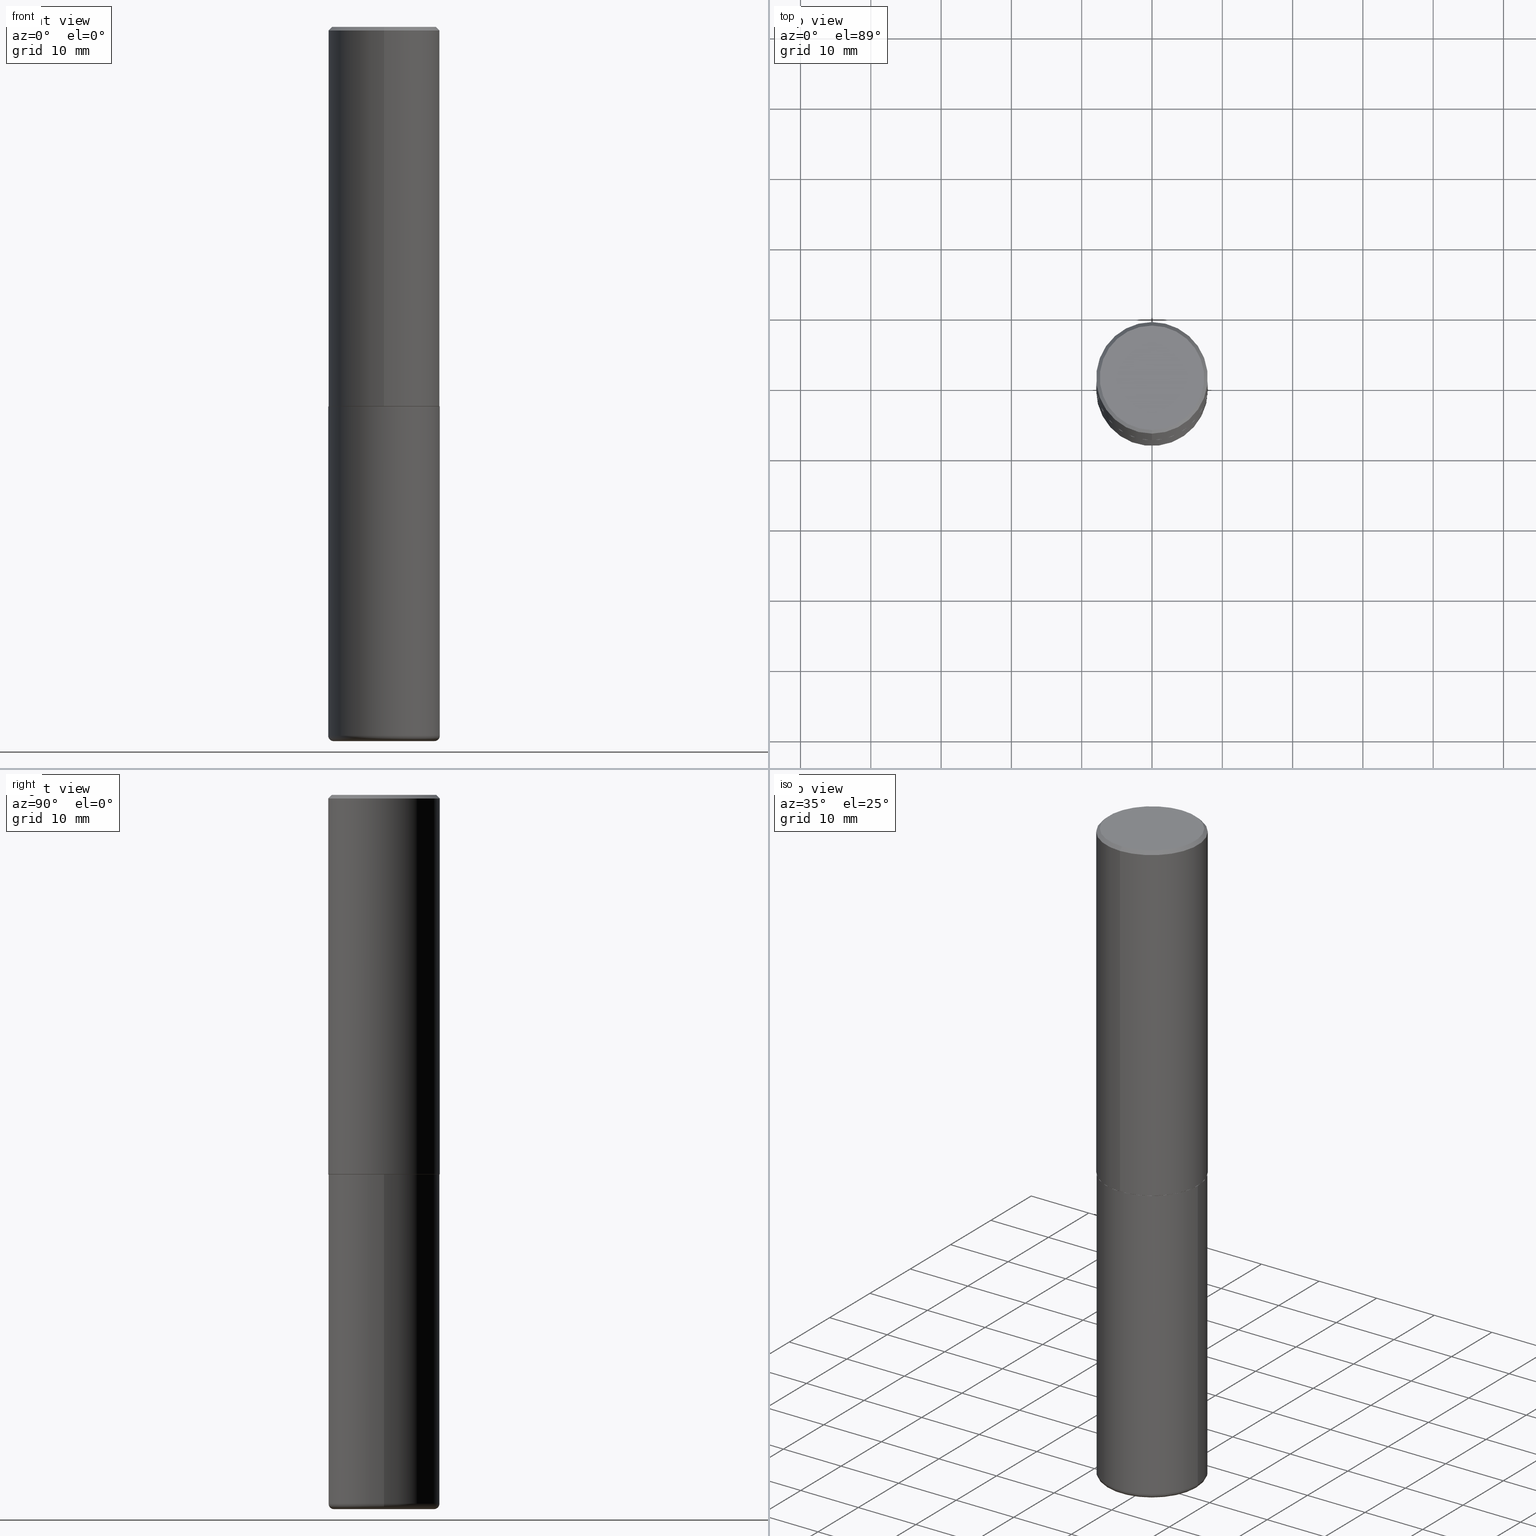
[diagram: canonical four-view strip — front | top / right | iso, engineering-drawing reading convention]
A machine part, canonical four-view strip (front | top / right | iso — engineering-drawing reading convention). The complete STEP part file that produces these views, byte-faithful:
ISO-10303-21;
HEADER;
FILE_DESCRIPTION (( 'STEP AP203' ),
    '1' );
FILE_NAME ('37587.STEP',
    '2024-03-02T05:04:02',
    ( '' ),
    ( '' ),
    'SwSTEP 2.0',
    'SolidWorks 2023',
    '' );
FILE_SCHEMA (( 'CONFIG_CONTROL_DESIGN' ));
ENDSEC;

DATA;
#1 = AXIS2_PLACEMENT_3D ( 'NONE', #8, #132, #392 ) ;
#2 = AXIS2_PLACEMENT_3D ( 'NONE', #366, #73, #293 ) ;
#3 = VECTOR ( 'NONE', #255, 39.37007874015748143 ) ;
#4 = CARTESIAN_POINT ( 'NONE',  ( -2.150299018297948745E-46, 3.071607443834507134E-32, 8.795209847407834549E-18 ) ) ;
#5 = ORIENTED_EDGE ( 'NONE', *, *, #189, .T. ) ;
#6 = EDGE_CURVE ( 'NONE', #127, #31, #110, .T. ) ;
#7 = CARTESIAN_POINT ( 'NONE',  ( 9.781875224740546387E-29, -1.396592535537258233E-14, -4.000000000000000000 ) ) ;
#8 = CARTESIAN_POINT ( 'NONE',  ( 4.889704863452922148E-31, -6.984728044299695791E-17, -0.02000000000000006981 ) ) ;
#9 = AXIS2_PLACEMENT_3D ( 'NONE', #243, #313, #208 ) ;
#10 = LINE ( 'NONE', #105, #311 ) ;
#11 = LOCAL_TIME ( 0, 4, 2.000000000000000000, #177 ) ;
#12 = ORIENTED_EDGE ( 'NONE', *, *, #6, .F. ) ;
#13 = VERTEX_POINT ( 'NONE', #294 ) ;
#14 = EDGE_CURVE ( 'NONE', #135, #233, #323, .T. ) ;
#15 = DIRECTION ( 'NONE',  ( -1.000000000000000000, 6.982962677686265922E-15, -4.876176775795935793E-29 ) ) ;
#16 = EDGE_LOOP ( 'NONE', ( #29, #78, #38, #325 ) ) ;
#17 = EDGE_CURVE ( 'NONE', #227, #123, #162, .T. ) ;
#18 = PERSON_AND_ORGANIZATION ( #160, #353 ) ;
#19 = AXIS2_PLACEMENT_3D ( 'NONE', #115, #109, #69 ) ;
#20 = DIRECTION ( 'NONE',  ( -6.982962677686265922E-15, -1.000000000000000000, 3.507991003100177457E-15 ) ) ;
#21 = APPROVAL_DATE_TIME ( #342, #91 ) ;
#22 = CARTESIAN_POINT ( 'NONE',  ( -0.2825000000000000289, -1.185389768668500455E-14, -3.970000000000000195 ) ) ;
#23 = DATE_TIME_ROLE ( 'creation_date' ) ;
#24 = CC_DESIGN_PERSON_AND_ORGANIZATION_ASSIGNMENT ( #153, #56, ( #104 ) ) ;
#25 = FACE_OUTER_BOUND ( 'NONE', #159, .T. ) ;
#26 = DIRECTION ( 'NONE',  ( -2.445468806185136597E-29, 3.491481338843145583E-15, 1.000000000000000000 ) ) ;
#27 = CALENDAR_DATE ( 2024, 2, 3 ) ;
#28 = DIRECTION ( 'NONE',  ( 1.000000000000000000, -6.982962677686269077E-15, 0.000000000000000000 ) ) ;
#29 = ORIENTED_EDGE ( 'NONE', *, *, #189, .F. ) ;
#30 = CARTESIAN_POINT ( 'NONE',  ( -2.143905624303602824E-15, -0.3125000000000000555, -0.01999999999999897693 ) ) ;
#31 = VERTEX_POINT ( 'NONE', #173 ) ;
#32 = ADVANCED_FACE ( 'NONE', ( #397 ), #298, .T. ) ;
#33 = CONICAL_SURFACE ( 'NONE', #262, 0.3125000000000000000, 0.7853981633974471688 ) ;
#34 = ORIENTED_EDGE ( 'NONE', *, *, #17, .F. ) ;
#35 = AXIS2_PLACEMENT_3D ( 'NONE', #349, #215, #338 ) ;
#36 = TOROIDAL_SURFACE ( 'NONE', #103, 0.2825000000000000289, 0.02999999999999997113 ) ;
#37 = CIRCLE ( 'NONE', #176, 0.3125000000000000000 ) ;
#38 = ORIENTED_EDGE ( 'NONE', *, *, #221, .T. ) ;
#39 = CARTESIAN_POINT ( 'NONE',  ( 5.196621213143414147E-29, -7.419397845041682046E-15, -2.124999999999999556 ) ) ;
#40 = ORIENTED_EDGE ( 'NONE', *, *, #14, .T. ) ;
#41 = DIRECTION ( 'NONE',  ( 1.000000000000000000, -6.982962677686269077E-15, 0.000000000000000000 ) ) ;
#42 = ORIENTED_EDGE ( 'NONE', *, *, #163, .T. ) ;
#43 = VECTOR ( 'NONE', #306, 39.37007874015748143 ) ;
#44 = EDGE_LOOP ( 'NONE', ( #380, #40, #42, #314 ) ) ;
#45 = DIRECTION ( 'NONE',  ( -1.000000000000000000, 6.982962677686265922E-15, -4.876176775795935793E-29 ) ) ;
#46 = CARTESIAN_POINT ( 'NONE',  ( 2.220446049250313475E-15, 0.3125000000000001665, -1.091363756921824478E-15 ) ) ;
#47 = DIRECTION ( 'NONE',  ( 2.438088387897960049E-29, -3.491481338843145188E-15, -1.000000000000000000 ) ) ;
#48 = EDGE_LOOP ( 'NONE', ( #95, #58, #220, #272 ) ) ;
#49 = APPROVAL_ROLE ( '' ) ;
#50 = APPROVAL_PERSON_ORGANIZATION ( #276, #196, #377 ) ;
#51 = DIRECTION ( 'NONE',  ( -6.982962677686265133E-15, -1.000000000000000000, 3.496765431890256920E-15 ) ) ;
#52 = CYLINDRICAL_SURFACE ( 'NONE', #201, 0.3125000000000000000 ) ;
#53 = CALENDAR_DATE ( 2024, 2, 3 ) ;
#54 = CARTESIAN_POINT ( 'NONE',  ( -0.3125000000000000000, -1.164073486595697430E-14, -3.970000000000000195 ) ) ;
#55 = VERTEX_POINT ( 'NONE', #238 ) ;
#56 = PERSON_AND_ORGANIZATION_ROLE ( 'classification_officer' ) ;
#57 = AXIS2_PLACEMENT_3D ( 'NONE', #82, #146, #28 ) ;
#58 = ORIENTED_EDGE ( 'NONE', *, *, #72, .T. ) ;
#59 = CALENDAR_DATE ( 2024, 2, 3 ) ;
#60 = LINE ( 'NONE', #30, #264 ) ;
#61 = ADVANCED_FACE ( 'NONE', ( #334 ), #36, .T. ) ;
#62 = ORIENTED_EDGE ( 'NONE', *, *, #6, .T. ) ;
#63 = ORIENTED_EDGE ( 'NONE', *, *, #147, .T. ) ;
#64 = CIRCLE ( 'NONE', #407, 0.3125000000000000000 ) ;
#65 = CIRCLE ( 'NONE', #140, 0.02999999999999998848 ) ;
#66 = EDGE_CURVE ( 'NONE', #135, #13, #231, .T. ) ;
#67 = ORIENTED_EDGE ( 'NONE', *, *, #223, .T. ) ;
#68 = CYLINDRICAL_SURFACE ( 'NONE', #93, 0.3125000000000001665 ) ;
#69 = DIRECTION ( 'NONE',  ( 1.000000000000000000, -6.982962677686269077E-15, 4.883557194083114022E-29 ) ) ;
#70 = ADVANCED_FACE ( 'NONE', ( #167 ), #192, .T. ) ;
#71 = FACE_OUTER_BOUND ( 'NONE', #290, .T. ) ;
#72 = EDGE_CURVE ( 'NONE', #123, #227, #364, .T. ) ;
#73 = DIRECTION ( 'NONE',  ( -2.444852431726452894E-29, 3.492364022149836358E-15, 1.000000000000000000 ) ) ;
#74 = DIRECTION ( 'NONE',  ( -6.982962677686265922E-15, -1.000000000000000000, 3.496765431890253764E-15 ) ) ;
#75 = CLOSED_SHELL ( 'NONE', ( #291, #369, #99, #212, #32, #142, #249, #360 ) ) ;
#76 = CARTESIAN_POINT ( 'NONE',  ( 0.3125000000000000000, -1.604335675198424731E-14, -3.970000000000000195 ) ) ;
#77 = CONICAL_SURFACE ( 'NONE', #235, 0.3114999999999999991, 0.7853981633975507526 ) ;
#78 = ORIENTED_EDGE ( 'NONE', *, *, #398, .F. ) ;
#79 = DIRECTION ( 'NONE',  ( -6.982962677686265922E-15, -1.000000000000000000, 3.507991003100177457E-15 ) ) ;
#80 = ORIENTED_EDGE ( 'NONE', *, *, #418, .T. ) ;
#81 = PERSON_AND_ORGANIZATION_ROLE ( 'creator' ) ;
#82 = CARTESIAN_POINT ( 'NONE',  ( 9.708511160554992872E-29, -1.386118091520728738E-14, -3.970000000000000195 ) ) ;
#83 = PERSON_AND_ORGANIZATION ( #160, #353 ) ;
#84 = AXIS2_PLACEMENT_3D ( 'NONE', #7, #204, #45 ) ;
#85 = CARTESIAN_POINT ( 'NONE',  ( -2.182175836776959136E-15, -0.3125000000000001665, 1.091363756921824478E-15 ) ) ;
#86 = APPROVAL_STATUS ( 'not_yet_approved' ) ;
#87 = CARTESIAN_POINT ( 'NONE',  ( 2.182175836776958741E-15, 0.3124999999999999445, -0.02000000000000116268 ) ) ;
#88 = EDGE_CURVE ( 'NONE', #13, #55, #363, .T. ) ;
#89 = PERSON_AND_ORGANIZATION_ROLE ( 'creator' ) ;
#90 = COORDINATED_UNIVERSAL_TIME_OFFSET ( 5, 0, .BEHIND. ) ;
#91 = APPROVAL ( #86, 'UNSPECIFIED' ) ;
#92 = DIRECTION ( 'NONE',  ( -2.444852431726452894E-29, 3.492364022149836358E-15, 1.000000000000000000 ) ) ;
#93 = AXIS2_PLACEMENT_3D ( 'NONE', #355, #107, #270 ) ;
#94 = ORIENTED_EDGE ( 'NONE', *, *, #221, .F. ) ;
#95 = ORIENTED_EDGE ( 'NONE', *, *, #223, .F. ) ;
#96 = VERTEX_POINT ( 'NONE', #106 ) ;
#97 = CARTESIAN_POINT ( 'NONE',  ( -0.3125000000000000000, -8.419843330874171634E-15, -2.124999999999999556 ) ) ;
#98 = CIRCLE ( 'NONE', #324, 0.2924999999999999822 ) ;
#99 = ADVANCED_FACE ( 'NONE', ( #71 ), #33, .T. ) ;
#100 = PLANE ( 'NONE',  #111 ) ;
#101 = CC_DESIGN_DATE_AND_TIME_ASSIGNMENT ( #348, #302, ( #104 ) ) ;
#102 = EDGE_LOOP ( 'NONE', ( #263, #351, #332, #252 ) ) ;
#103 = AXIS2_PLACEMENT_3D ( 'NONE', #138, #401, #356 ) ;
#104 = SECURITY_CLASSIFICATION ( '', '', #344 ) ;
#105 = CARTESIAN_POINT ( 'NONE',  ( 2.213340621892763743E-15, 0.3114999999999925606, -2.125000000000000888 ) ) ;
#106 = CARTESIAN_POINT ( 'NONE',  ( -2.075300644325887493E-15, -0.2924999999999999822, 1.030311686326234990E-15 ) ) ;
#107 = DIRECTION ( 'NONE',  ( -2.444852431726452894E-29, 3.492364022149836358E-15, 1.000000000000000000 ) ) ;
#108 = CARTESIAN_POINT ( 'NONE',  ( 0.000000000000000000, 0.000000000000000000, 0.000000000000000000 ) ) ;
#109 = DIRECTION ( 'NONE',  ( -2.445468806185136597E-29, 3.491481338843145583E-15, 1.000000000000000000 ) ) ;
#110 = CIRCLE ( 'NONE', #352, 0.3114999999999999991 ) ;
#111 = AXIS2_PLACEMENT_3D ( 'NONE', #232, #226, #137 ) ;
#112 = DIRECTION ( 'NONE',  ( -2.444852431726452894E-29, 3.492364022149836358E-15, 1.000000000000000000 ) ) ;
#113 = ORIENTED_EDGE ( 'NONE', *, *, #129, .F. ) ;
#114 = DATE_AND_TIME ( #210, #278 ) ;
#115 = CARTESIAN_POINT ( 'NONE',  ( 9.708511160554992872E-29, -1.386118091520728738E-14, -3.970000000000000195 ) ) ;
#116 = PLANE ( 'NONE',  #126 ) ;
#117 =( NAMED_UNIT ( * ) SI_UNIT ( $, .STERADIAN. ) SOLID_ANGLE_UNIT ( ) );
#118 = CONICAL_SURFACE ( 'NONE', #35, 0.3114999999999999991, 0.7853981633975507526 ) ;
#119 = CC_DESIGN_APPROVAL ( #261, ( #104 ) ) ;
#120 = DIRECTION ( 'NONE',  ( -2.445468806185136597E-29, 3.491481338843145583E-15, 1.000000000000000000 ) ) ;
#121 = PERSON_AND_ORGANIZATION ( #160, #353 ) ;
#122 = CARTESIAN_POINT ( 'NONE',  ( 2.220446049250340297E-15, 0.3124999999999928391, -2.124000000000000554 ) ) ;
#123 = VERTEX_POINT ( 'NONE', #375 ) ;
#124 = CARTESIAN_POINT ( 'NONE',  ( 4.889704863452922148E-31, -6.984728044299695791E-17, -0.02000000000000006981 ) ) ;
#125 = ORIENTED_EDGE ( 'NONE', *, *, #322, .T. ) ;
#126 = AXIS2_PLACEMENT_3D ( 'NONE', #241, #370, #211 ) ;
#127 = VERTEX_POINT ( 'NONE', #307 ) ;
#128 = EDGE_LOOP ( 'NONE', ( #63, #417 ) ) ;
#129 = EDGE_CURVE ( 'NONE', #96, #310, #318, .T. ) ;
#130 = DIRECTION ( 'NONE',  ( -6.982962677686265133E-15, -1.000000000000000000, 3.492364022149836753E-15 ) ) ;
#131 = DIRECTION ( 'NONE',  ( 1.000000000000000000, -6.982962677686270655E-15, 0.000000000000000000 ) ) ;
#132 = DIRECTION ( 'NONE',  ( -2.444852431726452894E-29, 3.492364022149836358E-15, 1.000000000000000000 ) ) ;
#133 = AXIS2_PLACEMENT_3D ( 'NONE', #124, #245, #285 ) ;
#134 = DESIGN_CONTEXT ( 'detailed design', #399, 'design' ) ;
#135 = VERTEX_POINT ( 'NONE', #122 ) ;
#136 = DIRECTION ( 'NONE',  ( -6.982962677686266711E-15, -1.000000000000000000, 3.491481338843145583E-15 ) ) ;
#137 = DIRECTION ( 'NONE',  ( 6.982962677686265922E-15, 1.000000000000000000, -3.492364022149836358E-15 ) ) ;
#138 = CARTESIAN_POINT ( 'NONE',  ( 9.708511160554992872E-29, -1.386118091520728738E-14, -3.970000000000000195 ) ) ;
#139 = AXIS2_PLACEMENT_3D ( 'NONE', #108, #141, #328 ) ;
#140 = AXIS2_PLACEMENT_3D ( 'NONE', #22, #275, #154 ) ;
#141 = DIRECTION ( 'NONE',  ( -2.444852431726452894E-29, 3.492364022149836358E-15, 1.000000000000000000 ) ) ;
#142 = ADVANCED_FACE ( 'NONE', ( #25 ), #118, .T. ) ;
#143 = DATE_AND_TIME ( #305, #11 ) ;
#144 = CARTESIAN_POINT ( 'NONE',  ( 4.889704863452922148E-31, -6.984728044299695791E-17, -0.02000000000000006981 ) ) ;
#145 = COORDINATED_UNIVERSAL_TIME_OFFSET ( 5, 0, .BEHIND. ) ;
#146 = DIRECTION ( 'NONE',  ( -2.445468806185136597E-29, 3.491481338843145583E-15, 1.000000000000000000 ) ) ;
#147 = EDGE_CURVE ( 'NONE', #165, #281, #64, .T. ) ;
#148 = DIRECTION ( 'NONE',  ( 0.000000000000000000, 0.000000000000000000, 1.000000000000000000 ) ) ;
#149 = CIRCLE ( 'NONE', #347, 0.3114999999999999991 ) ;
#150 = LINE ( 'NONE', #279, #209 ) ;
#151 = ADVANCED_FACE ( 'NONE', ( #378 ), #315, .T. ) ;
#152 = EDGE_LOOP ( 'NONE', ( #412, #12 ) ) ;
#153 = PERSON_AND_ORGANIZATION ( #160, #353 ) ;
#154 = DIRECTION ( 'NONE',  ( -1.000000000000000000, 7.105427357600993970E-15, 0.000000000000000000 ) ) ;
#155 = DIRECTION ( 'NONE',  ( -4.851104656540957964E-15, -0.7071067811865491270, -0.7071067811865459074 ) ) ;
#156 = ORIENTED_EDGE ( 'NONE', *, *, #163, .F. ) ;
#157 = EDGE_CURVE ( 'NONE', #55, #13, #37, .T. ) ;
#158 = VECTOR ( 'NONE', #268, 39.37007874015748143 ) ;
#159 = EDGE_LOOP ( 'NONE', ( #376, #62, #316, #168 ) ) ;
#160 = PERSON ( 'UNSPECIFIED', 'UNSPECIFIED', 'UNSPECIFIED', ('UNSPECIFIED'), ('UNSPECIFIED'), ('UNSPECIFIED') ) ;
#161 = EDGE_CURVE ( 'NONE', #286, #254, #244, .T. ) ;
#162 = CIRCLE ( 'NONE', #216, 0.2825000000000000289 ) ;
#163 = EDGE_CURVE ( 'NONE', #233, #55, #184, .T. ) ;
#164 = CIRCLE ( 'NONE', #253, 0.02999999999999998848 ) ;
#165 = VERTEX_POINT ( 'NONE', #219 ) ;
#166 = CARTESIAN_POINT ( 'NONE',  ( -0.3125000000000000000, 2.220446049250313081E-15, -1.537167215704658232E-29 ) ) ;
#167 = FACE_OUTER_BOUND ( 'NONE', #48, .T. ) ;
#168 = ORIENTED_EDGE ( 'NONE', *, *, #14, .F. ) ;
#169 = AXIS2_PLACEMENT_3D ( 'NONE', #180, #120, #405 ) ;
#170 = LENGTH_MEASURE_WITH_UNIT ( LENGTH_MEASURE( 0.02539999999999999897 ), #265 );
#171 = CARTESIAN_POINT ( 'NONE',  ( 5.195311417418712329E-29, -7.421273547068401324E-15, -2.124999999999999556 ) ) ;
#172 = CARTESIAN_POINT ( 'NONE',  ( 0.2825000000000000289, -1.583386787165366057E-14, -3.970000000000000195 ) ) ;
#173 = CARTESIAN_POINT ( 'NONE',  ( -2.175192874099219874E-15, -0.3115000000000074376, -2.124999999999998668 ) ) ;
#174 = CARTESIAN_POINT ( 'NONE',  ( 5.195311417418712329E-29, -7.421273547068401324E-15, -2.124999999999999556 ) ) ;
#175 = DIRECTION ( 'NONE',  ( -2.445468806185136597E-29, 3.491481338843145583E-15, 1.000000000000000000 ) ) ;
#176 = AXIS2_PLACEMENT_3D ( 'NONE', #144, #92, #51 ) ;
#177 = COORDINATED_UNIVERSAL_TIME_OFFSET ( 5, 0, .BEHIND. ) ;
#178 = APPLICATION_PROTOCOL_DEFINITION ( 'international standard', 'config_control_design', 1994, #399 ) ;
#179 = DATE_AND_TIME ( #53, #183 ) ;
#180 = CARTESIAN_POINT ( 'NONE',  ( 0.000000000000000000, 0.000000000000000000, 0.000000000000000000 ) ) ;
#181 = ORIENTED_EDGE ( 'NONE', *, *, #354, .F. ) ;
#182 =( CONVERSION_BASED_UNIT ( 'INCH', #170 ) LENGTH_UNIT ( ) NAMED_UNIT ( #416 ) );
#183 = LOCAL_TIME ( 0, 4, 2.000000000000000000, #90 ) ;
#184 = LINE ( 'NONE', #85, #43 ) ;
#185 = ORIENTED_EDGE ( 'NONE', *, *, #398, .T. ) ;
#186 = DIRECTION ( 'NONE',  ( 1.000000000000000000, -6.982962677686265133E-15, 0.000000000000000000 ) ) ;
#187 = ORIENTED_EDGE ( 'NONE', *, *, #161, .F. ) ;
#188 = ORIENTED_EDGE ( 'NONE', *, *, #309, .F. ) ;
#189 = EDGE_CURVE ( 'NONE', #96, #55, #60, .T. ) ;
#190 = CLOSED_SHELL ( 'NONE', ( #269, #61, #395, #151, #70, #384 ) ) ;
#191 = APPROVAL_PERSON_ORGANIZATION ( #18, #261, #49 ) ;
#192 = TOROIDAL_SURFACE ( 'NONE', #19, 0.2825000000000000289, 0.02999999999999997113 ) ;
#193 = AXIS2_PLACEMENT_3D ( 'NONE', #297, #329, #41 ) ;
#194 = DIRECTION ( 'NONE',  ( -6.982962677686265922E-15, -1.000000000000000000, 3.507991003100177457E-15 ) ) ;
#195 = EDGE_LOOP ( 'NONE', ( #259, #67, #187, #181 ) ) ;
#196 = APPROVAL ( #282, 'UNSPECIFIED' ) ;
#197 = DIRECTION ( 'NONE',  ( -2.445468806185136877E-29, 3.491481338843145188E-15, 1.000000000000000000 ) ) ;
#198 = CARTESIAN_POINT ( 'NONE',  ( 4.889704863452922148E-31, -6.984728044299695791E-17, -0.02000000000000006981 ) ) ;
#199 = DIRECTION ( 'NONE',  ( -2.445468806185136597E-29, 3.491481338843145583E-15, 1.000000000000000000 ) ) ;
#200 = DIRECTION ( 'NONE',  ( 1.000000000000000000, -6.982962677686269077E-15, 0.000000000000000000 ) ) ;
#201 = AXIS2_PLACEMENT_3D ( 'NONE', #308, #26, #411 ) ;
#202 = DIRECTION ( 'NONE',  ( 1.000000000000000000, -6.982962677686265133E-15, 0.000000000000000000 ) ) ;
#203 = ORIENTED_EDGE ( 'NONE', *, *, #66, .T. ) ;
#204 = DIRECTION ( 'NONE',  ( 2.438088387897960049E-29, -3.491481338843145188E-15, -1.000000000000000000 ) ) ;
#205 = CC_DESIGN_PERSON_AND_ORGANIZATION_ASSIGNMENT ( #400, #89, ( #256 ) ) ;
#206 = EDGE_LOOP ( 'NONE', ( #185, #336 ) ) ;
#207 = PERSON_AND_ORGANIZATION ( #160, #353 ) ;
#208 = DIRECTION ( 'NONE',  ( -6.982962677686265133E-15, -1.000000000000000000, 3.492364022149836753E-15 ) ) ;
#209 = VECTOR ( 'NONE', #409, 39.37007874015748143 ) ;
#210 = CALENDAR_DATE ( 2024, 2, 3 ) ;
#211 = DIRECTION ( 'NONE',  ( -6.982962677686265922E-15, -1.000000000000000000, 3.492364022149836358E-15 ) ) ;
#212 = ADVANCED_FACE ( 'NONE', ( #277 ), #385, .T. ) ;
#213 = DIRECTION ( 'NONE',  ( 4.937700262164541731E-15, 0.7071067811865442421, -0.7071067811865507924 ) ) ;
#214 = PERSON_AND_ORGANIZATION_ROLE ( 'design_supplier' ) ;
#215 = DIRECTION ( 'NONE',  ( -2.444852431726452894E-29, 3.492364022149836358E-15, 1.000000000000000000 ) ) ;
#216 = AXIS2_PLACEMENT_3D ( 'NONE', #365, #175, #200 ) ;
#217 = APPROVAL_DATE_TIME ( #179, #196 ) ;
#218 = AXIS2_PLACEMENT_3D ( 'NONE', #39, #199, #202 ) ;
#219 = CARTESIAN_POINT ( 'NONE',  ( 0.3125000000000000000, -9.601573681818640393E-15, -2.124999999999999556 ) ) ;
#220 = ORIENTED_EDGE ( 'NONE', *, *, #354, .T. ) ;
#221 = EDGE_CURVE ( 'NONE', #310, #13, #374, .T. ) ;
#222 = EDGE_LOOP ( 'NONE', ( #388, #203, #289, #156 ) ) ;
#223 = EDGE_CURVE ( 'NONE', #123, #254, #65, .T. ) ;
#224 = VECTOR ( 'NONE', #213, 39.37007874015748143 ) ;
#225 = ORIENTED_EDGE ( 'NONE', *, *, #72, .F. ) ;
#226 = DIRECTION ( 'NONE',  ( 2.444852431726452333E-29, -3.492364022149836358E-15, -1.000000000000000000 ) ) ;
#227 = VERTEX_POINT ( 'NONE', #403 ) ;
#228 = PRODUCT_DEFINITION_FORMATION_WITH_SPECIFIED_SOURCE ( 'ANY', '', #357, .NOT_KNOWN. ) ;
#229 = CARTESIAN_POINT ( 'NONE',  ( 9.781875224740546387E-29, -1.396592535537258233E-14, -4.000000000000000000 ) ) ;
#230 = PLANE ( 'NONE',  #84 ) ;
#231 = LINE ( 'NONE', #46, #158 ) ;
#232 = CARTESIAN_POINT ( 'NONE',  ( 2.042516583223232540E-15, 0.2924999999999999822, -1.017118871555123169E-15 ) ) ;
#233 = VERTEX_POINT ( 'NONE', #413 ) ;
#234 = MANIFOLD_SOLID_BREP ( 'Body-Move/Copy2[2]', #75 ) ;
#235 = AXIS2_PLACEMENT_3D ( 'NONE', #174, #112, #194 ) ;
#236 = CIRCLE ( 'NONE', #218, 0.3125000000000000000 ) ;
#237 = CARTESIAN_POINT ( 'NONE',  ( 2.112346210000095838E-15, 0.2924999999999999822, -1.012721266631419361E-15 ) ) ;
#238 = CARTESIAN_POINT ( 'NONE',  ( -2.143905624303602824E-15, -0.3125000000000000555, -0.01999999999999897693 ) ) ;
#239 = MANIFOLD_SOLID_BREP ( 'Body-Move/Copy2[1]', #190 ) ;
#240 = APPROVAL_ROLE ( '' ) ;
#241 = CARTESIAN_POINT ( 'NONE',  ( 5.195311417418712329E-29, -7.421273547068401324E-15, -2.124999999999999556 ) ) ;
#242 =( NAMED_UNIT ( * ) PLANE_ANGLE_UNIT ( ) SI_UNIT ( $, .RADIAN. ) );
#243 = CARTESIAN_POINT ( 'NONE',  ( -2.150299018297948745E-46, 3.071607443834507134E-32, 8.795209847407834549E-18 ) ) ;
#244 = CIRCLE ( 'NONE', #57, 0.3125000000000000000 ) ;
#245 = DIRECTION ( 'NONE',  ( 2.444852431726452894E-29, -3.492364022149836358E-15, -1.000000000000000000 ) ) ;
#246 = COORDINATED_UNIVERSAL_TIME_OFFSET ( 5, 0, .BEHIND. ) ;
#247 = LINE ( 'NONE', #320, #3 ) ;
#248 = EDGE_LOOP ( 'NONE', ( #34, #225 ) ) ;
#249 = ADVANCED_FACE ( 'NONE', ( #283 ), #116, .F. ) ;
#250 = APPLICATION_PROTOCOL_DEFINITION ( 'international standard', 'config_control_design', 1994, #299 ) ;
#251 = DIRECTION ( 'NONE',  ( 6.982962677686265133E-15, 1.000000000000000000, -3.496765431890256920E-15 ) ) ;
#252 = ORIENTED_EDGE ( 'NONE', *, *, #280, .F. ) ;
#253 = AXIS2_PLACEMENT_3D ( 'NONE', #172, #136, #131 ) ;
#254 = VERTEX_POINT ( 'NONE', #54 ) ;
#255 = DIRECTION ( 'NONE',  ( -2.445468806185136877E-29, 3.491481338843145188E-15, 1.000000000000000000 ) ) ;
#256 = PRODUCT_DEFINITION ( 'UNKNOWN', '', #228, #134 ) ;
#257 = CIRCLE ( 'NONE', #193, 0.3125000000000000000 ) ;
#258 = LINE ( 'NONE', #166, #381 ) ;
#259 = ORIENTED_EDGE ( 'NONE', *, *, #17, .T. ) ;
#260 = PLANE ( 'NONE',  #271 ) ;
#261 = APPROVAL ( #337, 'UNSPECIFIED' ) ;
#262 = AXIS2_PLACEMENT_3D ( 'NONE', #198, #330, #251 ) ;
#263 = ORIENTED_EDGE ( 'NONE', *, *, #161, .T. ) ;
#264 = VECTOR ( 'NONE', #155, 39.37007874015748143 ) ;
#265 =( LENGTH_UNIT ( ) NAMED_UNIT ( * ) SI_UNIT ( $, .METRE. ) );
#266 = ORIENTED_EDGE ( 'NONE', *, *, #345, .F. ) ;
#267 = FACE_OUTER_BOUND ( 'NONE', #206, .T. ) ;
#268 = DIRECTION ( 'NONE',  ( -2.444852431726452614E-29, 3.492364022149836358E-15, 1.000000000000000000 ) ) ;
#269 = ADVANCED_FACE ( 'NONE', ( #341 ), #52, .T. ) ;
#270 = DIRECTION ( 'NONE',  ( -6.982962677686265133E-15, -1.000000000000000000, 3.492364022149836358E-15 ) ) ;
#271 = AXIS2_PLACEMENT_3D ( 'NONE', #300, #47, #15 ) ;
#272 = ORIENTED_EDGE ( 'NONE', *, *, #418, .F. ) ;
#273 = APPROVAL_DATE_TIME ( #143, #261 ) ;
#274 = EDGE_CURVE ( 'NONE', #31, #233, #150, .T. ) ;
#275 = DIRECTION ( 'NONE',  ( 7.105427357601001859E-15, 1.000000000000000000, -3.491481338843145583E-15 ) ) ;
#276 = PERSON_AND_ORGANIZATION ( #160, #353 ) ;
#277 = FACE_OUTER_BOUND ( 'NONE', #16, .T. ) ;
#278 = LOCAL_TIME ( 0, 4, 2.000000000000000000, #246 ) ;
#279 = CARTESIAN_POINT ( 'NONE',  ( -2.175192874099219874E-15, -0.3115000000000074376, -2.124999999999998668 ) ) ;
#280 = EDGE_CURVE ( 'NONE', #286, #165, #247, .T. ) ;
#281 = VERTEX_POINT ( 'NONE', #97 ) ;
#282 = APPROVAL_STATUS ( 'not_yet_approved' ) ;
#283 = FACE_OUTER_BOUND ( 'NONE', #152, .T. ) ;
#284 = ORIENTED_EDGE ( 'NONE', *, *, #404, .F. ) ;
#285 = DIRECTION ( 'NONE',  ( 6.982962677686265133E-15, 1.000000000000000000, -3.496765431890256920E-15 ) ) ;
#286 = VERTEX_POINT ( 'NONE', #76 ) ;
#287 = UNCERTAINTY_MEASURE_WITH_UNIT (LENGTH_MEASURE( 1.000000000000000082E-05 ), #182, 'distance_accuracy_value', 'NONE');
#288 = CC_DESIGN_APPROVAL ( #196, ( #228 ) ) ;
#289 = ORIENTED_EDGE ( 'NONE', *, *, #157, .F. ) ;
#290 = EDGE_LOOP ( 'NONE', ( #113, #5, #303, #94 ) ) ;
#291 = ADVANCED_FACE ( 'NONE', ( #387 ), #77, .T. ) ;
#292 = DIRECTION ( 'NONE',  ( 1.000000000000000000, -6.982962677686269077E-15, 0.000000000000000000 ) ) ;
#293 = DIRECTION ( 'NONE',  ( -6.982962677686265922E-15, -1.000000000000000000, 3.496765431890253764E-15 ) ) ;
#294 = CARTESIAN_POINT ( 'NONE',  ( 2.182175836776958741E-15, 0.3124999999999999445, -0.02000000000000116268 ) ) ;
#295 = CIRCLE ( 'NONE', #2, 0.3125000000000002776 ) ;
#296 = PRODUCT_DEFINITION_SHAPE ( 'NONE', 'NONE',  #256 ) ;
#297 = CARTESIAN_POINT ( 'NONE',  ( 9.708511160554992872E-29, -1.386118091520728738E-14, -3.970000000000000195 ) ) ;
#298 = CYLINDRICAL_SURFACE ( 'NONE', #139, 0.3125000000000001665 ) ;
#299 = APPLICATION_CONTEXT ( 'configuration controlled 3d designs of mechanical parts and assemblies' ) ;
#300 = CARTESIAN_POINT ( 'NONE',  ( 5.196621213143414147E-29, -7.419397845041682046E-15, -2.124999999999999556 ) ) ;
#301 = EDGE_LOOP ( 'NONE', ( #125, #367, #188, #346 ) ) ;
#302 = DATE_TIME_ROLE ( 'classification_date' ) ;
#303 = ORIENTED_EDGE ( 'NONE', *, *, #157, .T. ) ;
#304 = AXIS2_PLACEMENT_3D ( 'NONE', #368, #148, #410 ) ;
#305 = CALENDAR_DATE ( 2024, 2, 3 ) ;
#306 = DIRECTION ( 'NONE',  ( -2.444852431726452614E-29, 3.492364022149836358E-15, 1.000000000000000000 ) ) ;
#307 = CARTESIAN_POINT ( 'NONE',  ( 2.216893335571564642E-15, 0.3114999999999925606, -2.125000000000000888 ) ) ;
#308 = CARTESIAN_POINT ( 'NONE',  ( 0.000000000000000000, 0.000000000000000000, 0.000000000000000000 ) ) ;
#309 = EDGE_CURVE ( 'NONE', #233, #135, #295, .T. ) ;
#310 = VERTEX_POINT ( 'NONE', #237 ) ;
#311 = VECTOR ( 'NONE', #331, 39.37007874015748143 ) ;
#312 = COORDINATED_UNIVERSAL_TIME_OFFSET ( 5, 0, .BEHIND. ) ;
#313 = DIRECTION ( 'NONE',  ( -2.444852431726452894E-29, 3.492364022149836358E-15, 1.000000000000000000 ) ) ;
#314 = ORIENTED_EDGE ( 'NONE', *, *, #88, .F. ) ;
#315 = CYLINDRICAL_SURFACE ( 'NONE', #169, 0.3125000000000000000 ) ;
#316 = ORIENTED_EDGE ( 'NONE', *, *, #274, .T. ) ;
#317 = ORIENTED_EDGE ( 'NONE', *, *, #280, .T. ) ;
#318 = CIRCLE ( 'NONE', #9, 0.2924999999999999822 ) ;
#319 =( GEOMETRIC_REPRESENTATION_CONTEXT ( 3 ) GLOBAL_UNCERTAINTY_ASSIGNED_CONTEXT ( ( #287 ) ) GLOBAL_UNIT_ASSIGNED_CONTEXT ( ( #182, #242, #117 ) ) REPRESENTATION_CONTEXT ( 'NONE', 'WORKASPACE' ) );
#320 = CARTESIAN_POINT ( 'NONE',  ( 0.3125000000000000000, -2.182175836776958347E-15, 1.523805242436230075E-29 ) ) ;
#321 = ADVANCED_BREP_SHAPE_REPRESENTATION ( '37587', ( #239, #234, #304 ), #319 ) ;
#322 = EDGE_CURVE ( 'NONE', #31, #127, #149, .T. ) ;
#323 = CIRCLE ( 'NONE', #379, 0.3125000000000002776 ) ;
#324 = AXIS2_PLACEMENT_3D ( 'NONE', #4, #390, #130 ) ;
#325 = ORIENTED_EDGE ( 'NONE', *, *, #88, .T. ) ;
#326 = PRODUCT_RELATED_PRODUCT_CATEGORY ( 'detail', '', ( #357 ) ) ;
#327 = CARTESIAN_POINT ( 'NONE',  ( 5.195311417418712329E-29, -7.421273547068401324E-15, -2.124999999999999556 ) ) ;
#328 = DIRECTION ( 'NONE',  ( -6.982962677686265133E-15, -1.000000000000000000, 3.492364022149836358E-15 ) ) ;
#329 = DIRECTION ( 'NONE',  ( -2.445468806185136597E-29, 3.491481338843145583E-15, 1.000000000000000000 ) ) ;
#330 = DIRECTION ( 'NONE',  ( 2.444852431726452894E-29, -3.492364022149836358E-15, -1.000000000000000000 ) ) ;
#331 = DIRECTION ( 'NONE',  ( 5.024295867788576727E-15, 0.7071067811866224018, 0.7071067811864726327 ) ) ;
#332 = ORIENTED_EDGE ( 'NONE', *, *, #147, .F. ) ;
#333 = LOCAL_TIME ( 0, 4, 2.000000000000000000, #145 ) ;
#334 = FACE_OUTER_BOUND ( 'NONE', #195, .T. ) ;
#335 = FACE_OUTER_BOUND ( 'NONE', #128, .T. ) ;
#336 = ORIENTED_EDGE ( 'NONE', *, *, #129, .T. ) ;
#337 = APPROVAL_STATUS ( 'not_yet_approved' ) ;
#338 = DIRECTION ( 'NONE',  ( -6.982962677686265922E-15, -1.000000000000000000, 3.507991003100177457E-15 ) ) ;
#339 = CC_DESIGN_PERSON_AND_ORGANIZATION_ASSIGNMENT ( #207, #214, ( #228 ) ) ;
#340 = LOCAL_TIME ( 0, 4, 2.000000000000000000, #312 ) ;
#341 = FACE_OUTER_BOUND ( 'NONE', #102, .T. ) ;
#342 = DATE_AND_TIME ( #59, #333 ) ;
#343 = CARTESIAN_POINT ( 'NONE',  ( 5.196621213143414147E-29, -7.419397845041682046E-15, -2.124999999999999556 ) ) ;
#344 = SECURITY_CLASSIFICATION_LEVEL ( 'unclassified' ) ;
#345 = EDGE_CURVE ( 'NONE', #281, #165, #236, .T. ) ;
#346 = ORIENTED_EDGE ( 'NONE', *, *, #274, .F. ) ;
#347 = AXIS2_PLACEMENT_3D ( 'NONE', #327, #396, #79 ) ;
#348 = DATE_AND_TIME ( #27, #340 ) ;
#349 = CARTESIAN_POINT ( 'NONE',  ( 5.195311417418712329E-29, -7.421273547068401324E-15, -2.124999999999999556 ) ) ;
#350 = CC_DESIGN_PERSON_AND_ORGANIZATION_ASSIGNMENT ( #121, #81, ( #228 ) ) ;
#351 = ORIENTED_EDGE ( 'NONE', *, *, #404, .T. ) ;
#352 = AXIS2_PLACEMENT_3D ( 'NONE', #171, #359, #20 ) ;
#353 = ORGANIZATION ( 'UNSPECIFIED', 'UNSPECIFIED', '' ) ;
#354 = EDGE_CURVE ( 'NONE', #227, #286, #164, .T. ) ;
#355 = CARTESIAN_POINT ( 'NONE',  ( 0.000000000000000000, 0.000000000000000000, 0.000000000000000000 ) ) ;
#356 = DIRECTION ( 'NONE',  ( 1.000000000000000000, -6.982962677686269077E-15, 4.883557194083114022E-29 ) ) ;
#357 = PRODUCT ( '37587', '37587', '', ( #402 ) ) ;
#358 = FACE_OUTER_BOUND ( 'NONE', #248, .T. ) ;
#359 = DIRECTION ( 'NONE',  ( -2.444852431726452894E-29, 3.492364022149836358E-15, 1.000000000000000000 ) ) ;
#360 = ADVANCED_FACE ( 'NONE', ( #267 ), #100, .F. ) ;
#361 = CARTESIAN_POINT ( 'NONE',  ( 5.192866564986985411E-29, -7.417781183046251262E-15, -2.123999999999999666 ) ) ;
#362 = FACE_OUTER_BOUND ( 'NONE', #222, .T. ) ;
#363 = CIRCLE ( 'NONE', #1, 0.3125000000000000000 ) ;
#364 = CIRCLE ( 'NONE', #389, 0.2825000000000000289 ) ;
#365 = CARTESIAN_POINT ( 'NONE',  ( 9.781875224740546387E-29, -1.396592535537258233E-14, -4.000000000000000000 ) ) ;
#366 = CARTESIAN_POINT ( 'NONE',  ( 5.192866564986985411E-29, -7.417781183046251262E-15, -2.123999999999999666 ) ) ;
#367 = ORIENTED_EDGE ( 'NONE', *, *, #406, .T. ) ;
#368 = CARTESIAN_POINT ( 'NONE',  ( 0.000000000000000000, 0.000000000000000000, 0.000000000000000000 ) ) ;
#369 = ADVANCED_FACE ( 'NONE', ( #362 ), #68, .T. ) ;
#370 = DIRECTION ( 'NONE',  ( -2.444852431726452333E-29, 3.492364022149836358E-15, 1.000000000000000000 ) ) ;
#371 = DIRECTION ( 'NONE',  ( -2.445468806185136597E-29, 3.491481338843145583E-15, 1.000000000000000000 ) ) ;
#372 = APPROVAL_PERSON_ORGANIZATION ( #373, #91, #240 ) ;
#373 = PERSON_AND_ORGANIZATION ( #160, #353 ) ;
#374 = LINE ( 'NONE', #87, #224 ) ;
#375 = CARTESIAN_POINT ( 'NONE',  ( -0.2825000000000000289, -1.179968849640363848E-14, -4.000000000000000000 ) ) ;
#376 = ORIENTED_EDGE ( 'NONE', *, *, #406, .F. ) ;
#377 = APPROVAL_ROLE ( '' ) ;
#378 = FACE_OUTER_BOUND ( 'NONE', #383, .T. ) ;
#379 = AXIS2_PLACEMENT_3D ( 'NONE', #361, #393, #74 ) ;
#380 = ORIENTED_EDGE ( 'NONE', *, *, #66, .F. ) ;
#381 = VECTOR ( 'NONE', #197, 39.37007874015748143 ) ;
#382 = SHAPE_DEFINITION_REPRESENTATION ( #296, #321 ) ;
#383 = EDGE_LOOP ( 'NONE', ( #284, #80, #317, #266 ) ) ;
#384 = ADVANCED_FACE ( 'NONE', ( #358 ), #230, .T. ) ;
#385 = CONICAL_SURFACE ( 'NONE', #133, 0.3125000000000000000, 0.7853981633974471688 ) ;
#386 = CC_DESIGN_SECURITY_CLASSIFICATION ( #104, ( #228 ) ) ;
#387 = FACE_OUTER_BOUND ( 'NONE', #301, .T. ) ;
#388 = ORIENTED_EDGE ( 'NONE', *, *, #309, .T. ) ;
#389 = AXIS2_PLACEMENT_3D ( 'NONE', #229, #394, #292 ) ;
#390 = DIRECTION ( 'NONE',  ( -2.444852431726452894E-29, 3.492364022149836358E-15, 1.000000000000000000 ) ) ;
#391 = CC_DESIGN_DATE_AND_TIME_ASSIGNMENT ( #114, #23, ( #256 ) ) ;
#392 = DIRECTION ( 'NONE',  ( -6.982962677686265133E-15, -1.000000000000000000, 3.496765431890256920E-15 ) ) ;
#393 = DIRECTION ( 'NONE',  ( -2.444852431726452894E-29, 3.492364022149836358E-15, 1.000000000000000000 ) ) ;
#394 = DIRECTION ( 'NONE',  ( -2.445468806185136597E-29, 3.491481338843145583E-15, 1.000000000000000000 ) ) ;
#395 = ADVANCED_FACE ( 'NONE', ( #335 ), #260, .F. ) ;
#396 = DIRECTION ( 'NONE',  ( -2.444852431726452894E-29, 3.492364022149836358E-15, 1.000000000000000000 ) ) ;
#397 = FACE_OUTER_BOUND ( 'NONE', #44, .T. ) ;
#398 = EDGE_CURVE ( 'NONE', #310, #96, #98, .T. ) ;
#399 = APPLICATION_CONTEXT ( 'configuration controlled 3d designs of mechanical parts and assemblies' ) ;
#400 = PERSON_AND_ORGANIZATION ( #160, #353 ) ;
#401 = DIRECTION ( 'NONE',  ( -2.445468806185136597E-29, 3.491481338843145583E-15, 1.000000000000000000 ) ) ;
#402 = MECHANICAL_CONTEXT ( 'NONE', #299, 'mechanical' ) ;
#403 = CARTESIAN_POINT ( 'NONE',  ( 0.2825000000000000289, -1.593861231181895394E-14, -4.000000000000000000 ) ) ;
#404 = EDGE_CURVE ( 'NONE', #254, #281, #258, .T. ) ;
#405 = DIRECTION ( 'NONE',  ( 1.000000000000000000, -6.982962677686266711E-15, 4.876176775795936353E-29 ) ) ;
#406 = EDGE_CURVE ( 'NONE', #127, #135, #10, .T. ) ;
#407 = AXIS2_PLACEMENT_3D ( 'NONE', #343, #371, #186 ) ;
#408 = PERSON_AND_ORGANIZATION_ROLE ( 'design_owner' ) ;
#409 = DIRECTION ( 'NONE',  ( -4.937700262165053702E-15, -0.7071067811866175168, 0.7071067811864775177 ) ) ;
#410 = DIRECTION ( 'NONE',  ( 1.000000000000000000, 0.000000000000000000, 0.000000000000000000 ) ) ;
#411 = DIRECTION ( 'NONE',  ( 1.000000000000000000, -6.982962677686266711E-15, 4.876176775795936353E-29 ) ) ;
#412 = ORIENTED_EDGE ( 'NONE', *, *, #322, .F. ) ;
#413 = CARTESIAN_POINT ( 'NONE',  ( -2.182175836776908254E-15, -0.3125000000000077161, -2.123999999999998334 ) ) ;
#414 = CC_DESIGN_APPROVAL ( #91, ( #256 ) ) ;
#415 = CC_DESIGN_PERSON_AND_ORGANIZATION_ASSIGNMENT ( #83, #408, ( #357 ) ) ;
#416 = DIMENSIONAL_EXPONENTS ( 1.000000000000000000, 0.000000000000000000, 0.000000000000000000, 0.000000000000000000, 0.000000000000000000, 0.000000000000000000, 0.000000000000000000 ) ;
#417 = ORIENTED_EDGE ( 'NONE', *, *, #345, .T. ) ;
#418 = EDGE_CURVE ( 'NONE', #254, #286, #257, .T. ) ;
ENDSEC;
END-ISO-10303-21;
